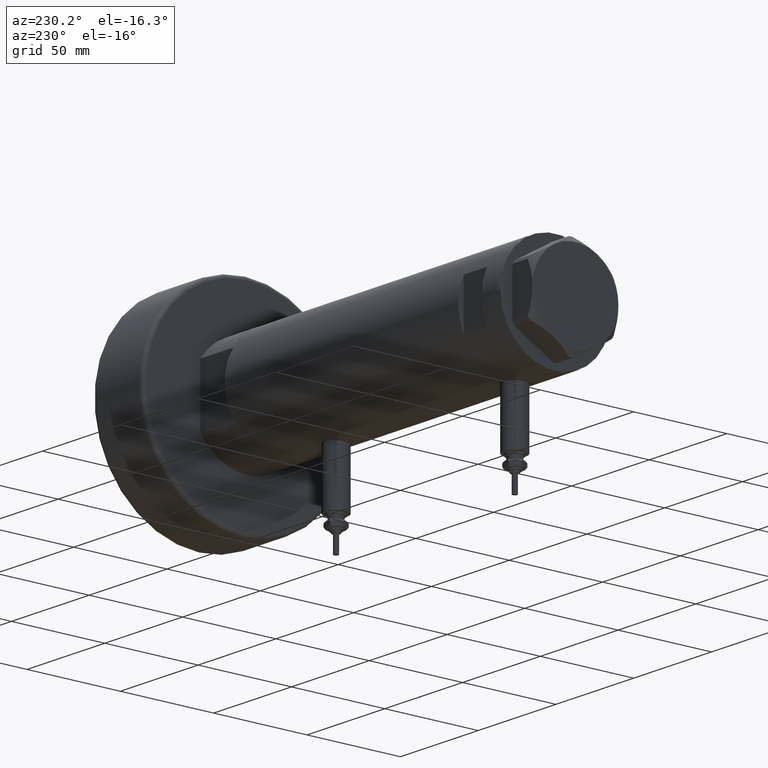
[diagram: clean part render]
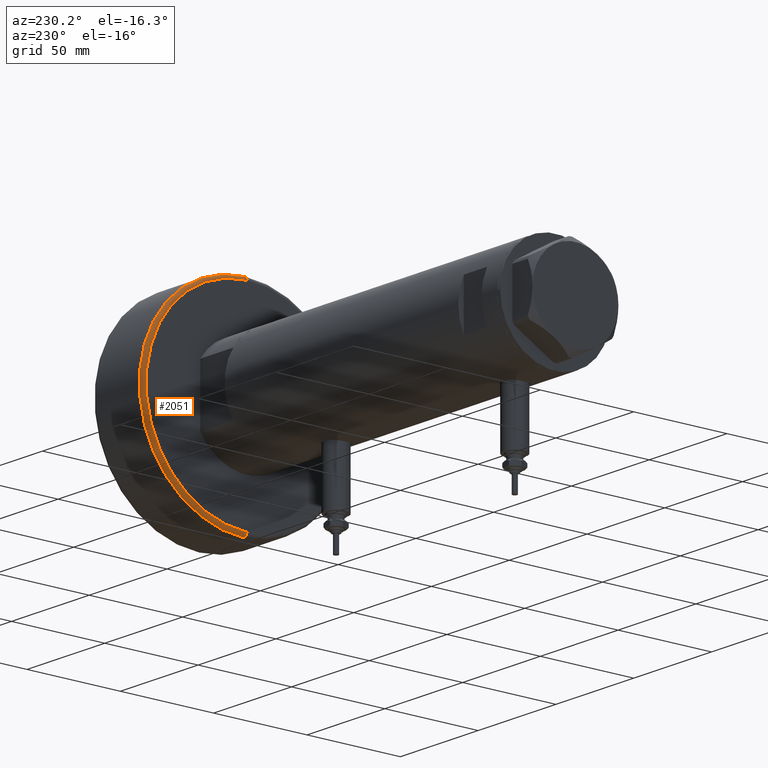
[diagram: same view with one face highlighted and labeled with its STEP entity id]
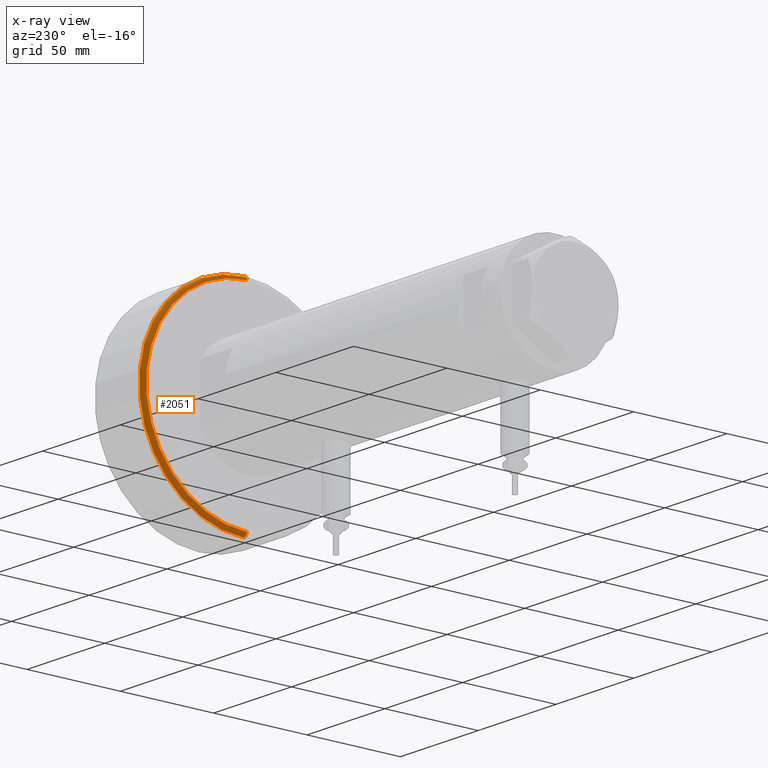
[diagram: x-ray of the same camera — body ghosted, the highlighted face saturated]
A machine part, auxiliary view. The second image highlights one B-rep face of the part: STEP entity #2051.
The next image is the same camera in x-ray: the body ghosted, the highlighted face saturated — about 0% of this face is hidden behind the body in this view.
In plain terms, the highlighted toroidal blend (fillet) surface has major radius 54 mm and minor (blend) radius 2 mm.
Its self-contained STEP definition (entity closure, byte-faithful):
#161 = EDGE_CURVE ( 'NONE', #3805, #4788, #2404, .T. ) ;
#325 = FACE_OUTER_BOUND ( 'NONE', #4265, .T. ) ;
#360 = AXIS2_PLACEMENT_3D ( 'NONE', #728, #2234, #3625 ) ;
#728 = CARTESIAN_POINT ( 'NONE',  ( 54.00000000000000000, 0.000000000000000000, 2.000000000000001776 ) ) ;
#780 = CARTESIAN_POINT ( 'NONE',  ( 0.000000000000000000, 0.000000000000000000, 2.000000000000001776 ) ) ;
#816 = DIRECTION ( 'NONE',  ( 1.224646799147353207E-16, 1.000000000000000000, -0.000000000000000000 ) ) ;
#1073 = CIRCLE ( 'NONE', #2684, 2.000000000000001776 ) ;
#1671 = EDGE_CURVE ( 'NONE', #3785, #4974, #1073, .T. ) ;
#1724 = ORIENTED_EDGE ( 'NONE', *, *, #1671, .T. ) ;
#1779 = AXIS2_PLACEMENT_3D ( 'NONE', #780, #4156, #6030 ) ;
#1948 = DIRECTION ( 'NONE',  ( -0.000000000000000000, -0.000000000000000000, -1.000000000000000000 ) ) ;
#2051 = ADVANCED_FACE ( 'NONE', ( #325 ), #3303, .T. ) ;
#2218 = CARTESIAN_POINT ( 'NONE',  ( 56.00000000000000000, 6.858022075225178552E-15, 2.000000000000001776 ) ) ;
#2222 = CIRCLE ( 'NONE', #3938, 56.00000000000000000 ) ;
#2234 = DIRECTION ( 'NONE',  ( 0.000000000000000000, -1.000000000000000000, 0.000000000000000000 ) ) ;
#2298 = CIRCLE ( 'NONE', #3015, 54.00000000000000000 ) ;
#2321 = DIRECTION ( 'NONE',  ( -1.000000000000000000, 1.224646799147353454E-16, 0.000000000000000000 ) ) ;
#2404 = CIRCLE ( 'NONE', #360, 2.000000000000000000 ) ;
#2508 = DIRECTION ( 'NONE',  ( 0.000000000000000000, 0.000000000000000000, 1.000000000000000000 ) ) ;
#2521 = ORIENTED_EDGE ( 'NONE', *, *, #3770, .F. ) ;
#2684 = AXIS2_PLACEMENT_3D ( 'NONE', #3743, #816, #2321 ) ;
#2863 = ORIENTED_EDGE ( 'NONE', *, *, #5824, .F. ) ;
#2885 = DIRECTION ( 'NONE',  ( 1.000000000000000000, 0.000000000000000000, 0.000000000000000000 ) ) ;
#3015 = AXIS2_PLACEMENT_3D ( 'NONE', #5324, #1948, #2885 ) ;
#3303 = TOROIDAL_SURFACE ( 'NONE', #1779, 54.00000000000000000, 2.000000000000000000 ) ;
#3337 = CARTESIAN_POINT ( 'NONE',  ( -54.00000000000000000, 6.735557395310443404E-15, 0.000000000000000000 ) ) ;
#3625 = DIRECTION ( 'NONE',  ( 0.000000000000000000, 0.000000000000000000, -1.000000000000000000 ) ) ;
#3743 = CARTESIAN_POINT ( 'NONE',  ( -54.00000000000000000, 6.613092715395707467E-15, 2.000000000000001776 ) ) ;
#3770 = EDGE_CURVE ( 'NONE', #3785, #3805, #2298, .T. ) ;
#3785 = VERTEX_POINT ( 'NONE', #3337 ) ;
#3799 = CARTESIAN_POINT ( 'NONE',  ( 54.00000000000000000, 0.000000000000000000, 0.000000000000000000 ) ) ;
#3805 = VERTEX_POINT ( 'NONE', #3799 ) ;
#3911 = CARTESIAN_POINT ( 'NONE',  ( -56.00000000000000000, 0.000000000000000000, 2.000000000000001776 ) ) ;
#3938 = AXIS2_PLACEMENT_3D ( 'NONE', #4409, #2508, #5327 ) ;
#4156 = DIRECTION ( 'NONE',  ( 0.000000000000000000, 0.000000000000000000, 1.000000000000000000 ) ) ;
#4265 = EDGE_LOOP ( 'NONE', ( #2521, #1724, #2863, #5226 ) ) ;
#4409 = CARTESIAN_POINT ( 'NONE',  ( 0.000000000000000000, 0.000000000000000000, 2.000000000000001776 ) ) ;
#4788 = VERTEX_POINT ( 'NONE', #2218 ) ;
#4974 = VERTEX_POINT ( 'NONE', #3911 ) ;
#5226 = ORIENTED_EDGE ( 'NONE', *, *, #161, .F. ) ;
#5324 = CARTESIAN_POINT ( 'NONE',  ( 0.000000000000000000, 0.000000000000000000, 0.000000000000000000 ) ) ;
#5327 = DIRECTION ( 'NONE',  ( 1.000000000000000000, 0.000000000000000000, 0.000000000000000000 ) ) ;
#5824 = EDGE_CURVE ( 'NONE', #4788, #4974, #2222, .T. ) ;
#6030 = DIRECTION ( 'NONE',  ( 1.000000000000000000, 0.000000000000000000, 0.000000000000000000 ) ) ;